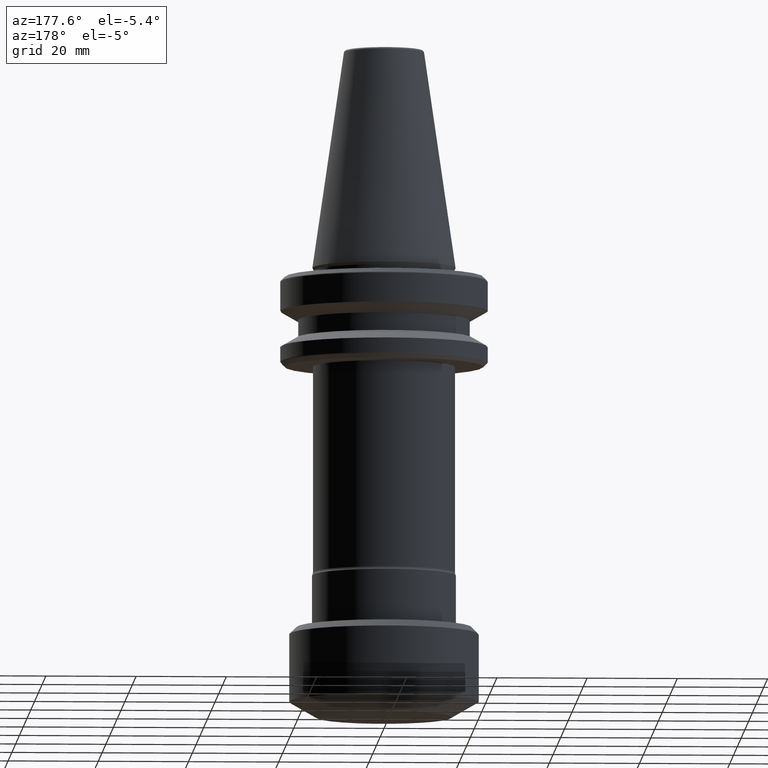
[diagram: clean part render]
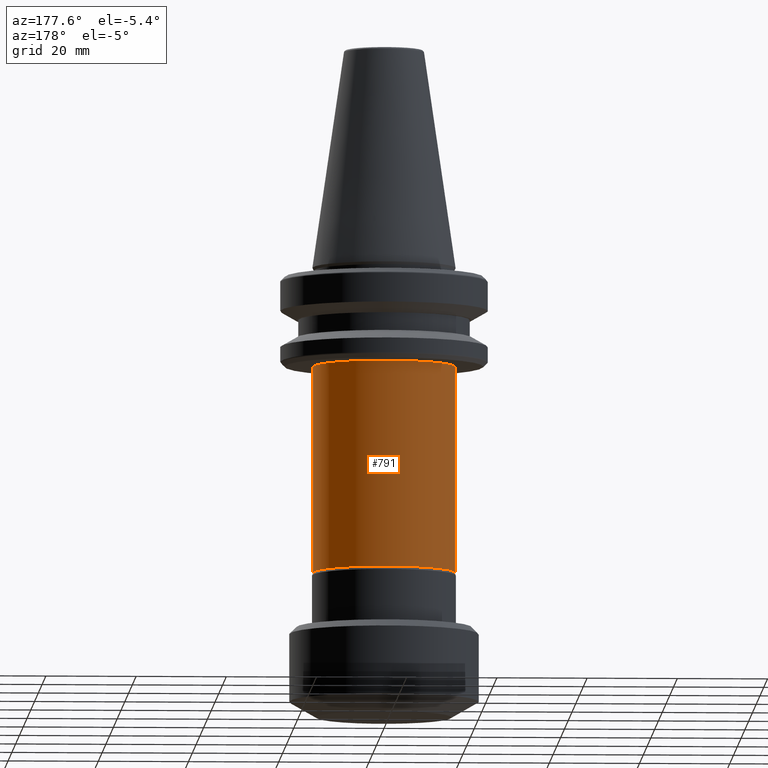
[diagram: same view with one face highlighted and labeled with its STEP entity id]
A machine part, auxiliary view. The second image highlights one B-rep face of the part: STEP entity #791.
In plain terms, the highlighted cylindrical surface (partial cylindrical patch) has radius 15.75 mm, axis along (-0, -0, 1).
Its self-contained STEP definition (entity closure, byte-faithful):
#18 = ORIENTED_EDGE ( 'NONE', *, *, #55, .F. ) ;
#55 = EDGE_CURVE ( 'NONE', #764, #434, #1078, .T. ) ;
#92 = CARTESIAN_POINT ( 'NONE',  ( 0.0000000000000000000, 0.0000000000000000000, -67.77940395325514100 ) ) ;
#149 = CARTESIAN_POINT ( 'NONE',  ( -15.74999999999999300, 1.928818708657081000E-015, -22.00000000000000700 ) ) ;
#166 = LINE ( 'NONE', #883, #717 ) ;
#167 = ORIENTED_EDGE ( 'NONE', *, *, #1081, .T. ) ;
#198 = ORIENTED_EDGE ( 'NONE', *, *, #1099, .T. ) ;
#199 = FACE_OUTER_BOUND ( 'NONE', #969, .T. ) ;
#200 = CARTESIAN_POINT ( 'NONE',  ( 15.75000000000000400, 0.0000000000000000000, -67.77940395325514100 ) ) ;
#201 = DIRECTION ( 'NONE',  ( 1.000000000000000000, 0.0000000000000000000, 0.0000000000000000000 ) ) ;
#203 = DIRECTION ( 'NONE',  ( -0.0000000000000000000, -0.0000000000000000000, 1.000000000000000000 ) ) ;
#236 = VECTOR ( 'NONE', #661, 1000.000000000000000 ) ;
#282 = CARTESIAN_POINT ( 'NONE',  ( -15.75000000000000400, 1.928818708657081700E-015, -67.77940395325514100 ) ) ;
#434 = VERTEX_POINT ( 'NONE', #149 ) ;
#464 = AXIS2_PLACEMENT_3D ( 'NONE', #861, #1398, #1405 ) ;
#539 = CIRCLE ( 'NONE', #665, 15.75000000000000400 ) ;
#570 = VERTEX_POINT ( 'NONE', #282 ) ;
#579 = LINE ( 'NONE', #986, #236 ) ;
#588 = AXIS2_PLACEMENT_3D ( 'NONE', #1225, #203, #992 ) ;
#661 = DIRECTION ( 'NONE',  ( -0.0000000000000000000, -0.0000000000000000000, 1.000000000000000000 ) ) ;
#665 = AXIS2_PLACEMENT_3D ( 'NONE', #92, #879, #201 ) ;
#717 = VECTOR ( 'NONE', #998, 1000.000000000000000 ) ;
#764 = VERTEX_POINT ( 'NONE', #971 ) ;
#791 = ADVANCED_FACE ( 'NONE', ( #199 ), #1319, .T. ) ;
#838 = VERTEX_POINT ( 'NONE', #200 ) ;
#861 = CARTESIAN_POINT ( 'NONE',  ( 0.0000000000000000000, 0.0000000000000000000, 88.34764052968309000 ) ) ;
#879 = DIRECTION ( 'NONE',  ( -0.0000000000000000000, -0.0000000000000000000, 1.000000000000000000 ) ) ;
#883 = CARTESIAN_POINT ( 'NONE',  ( -15.75000000000000000, 1.928818708657081300E-015, 88.34764052968309000 ) ) ;
#969 = EDGE_LOOP ( 'NONE', ( #167, #198, #18, #1348 ) ) ;
#971 = CARTESIAN_POINT ( 'NONE',  ( 15.74999999999999300, 0.0000000000000000000, -22.00000000000000700 ) ) ;
#986 = CARTESIAN_POINT ( 'NONE',  ( 15.75000000000000000, 0.0000000000000000000, 88.34764052968309000 ) ) ;
#992 = DIRECTION ( 'NONE',  ( 1.000000000000000000, 0.0000000000000000000, 0.0000000000000000000 ) ) ;
#998 = DIRECTION ( 'NONE',  ( -0.0000000000000000000, -0.0000000000000000000, 1.000000000000000000 ) ) ;
#1065 = EDGE_CURVE ( 'NONE', #838, #764, #579, .T. ) ;
#1078 = CIRCLE ( 'NONE', #588, 15.74999999999999300 ) ;
#1081 = EDGE_CURVE ( 'NONE', #838, #570, #539, .T. ) ;
#1099 = EDGE_CURVE ( 'NONE', #570, #434, #166, .T. ) ;
#1225 = CARTESIAN_POINT ( 'NONE',  ( 0.0000000000000000000, 0.0000000000000000000, -22.00000000000000700 ) ) ;
#1319 = CYLINDRICAL_SURFACE ( 'NONE', #464, 15.75000000000000000 ) ;
#1348 = ORIENTED_EDGE ( 'NONE', *, *, #1065, .F. ) ;
#1398 = DIRECTION ( 'NONE',  ( -0.0000000000000000000, -0.0000000000000000000, 1.000000000000000000 ) ) ;
#1405 = DIRECTION ( 'NONE',  ( 1.000000000000000000, 0.0000000000000000000, 0.0000000000000000000 ) ) ;